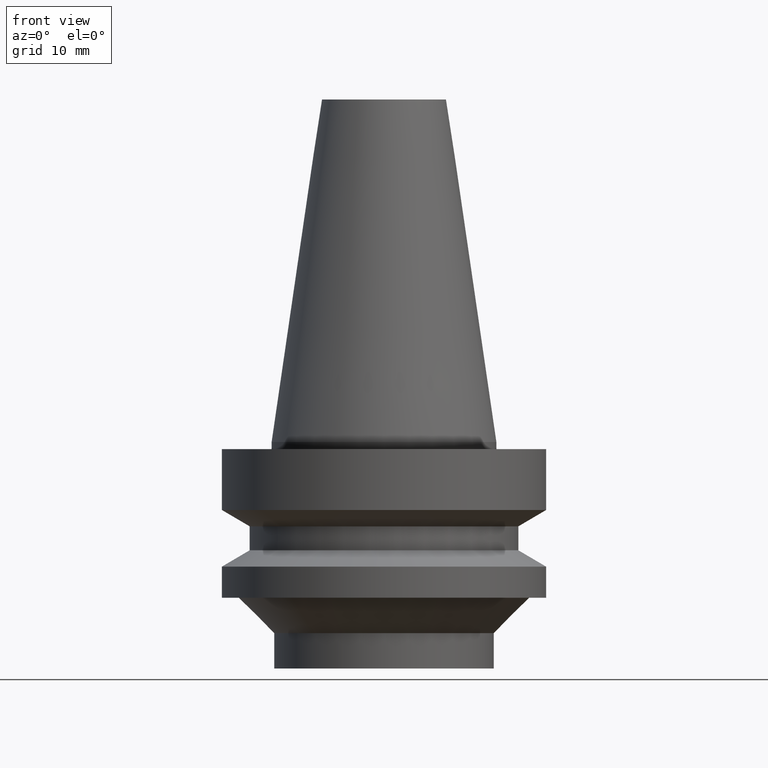
[diagram: clean part render]
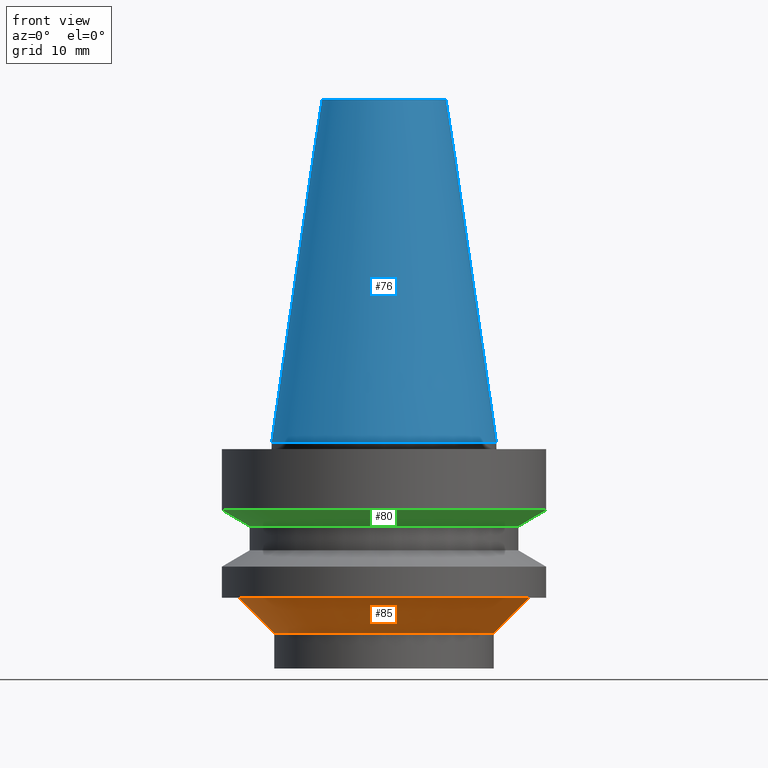
[diagram: same view with three faces highlighted in distinct colors, each labeled with its STEP entity id]
A machine part, front view with three faces highlighted in distinct colors.
Their STEP definitions:

[orange] entity #85 — the highlighted conical surface has half-angle 45 deg.
#85=ADVANCED_FACE('',(#118,#119),#120,.T.);
#118=FACE_BOUND('',#155,.T.);
#119=FACE_BOUND('',#156,.T.);
#120=CONICAL_SURFACE('',#157,18.0,0.785398163397448);
#155=EDGE_LOOP('',(#212));
#156=EDGE_LOOP('',(#213));
#157=AXIS2_PLACEMENT_3D('',#214,#215,#216);
#212=ORIENTED_EDGE('',*,*,#236,.F.);
#213=ORIENTED_EDGE('',*,*,#235,.T.);
#214=CARTESIAN_POINT('',(1.50019232895551E-015,3.00038465791101E-015,-24.5));
#215=DIRECTION('',(-6.12323399573677E-017,-1.22464679914738E-016,1.0));
#216=DIRECTION('',(-1.23259516440783E-032,1.0,1.22464679914738E-016));
#235=EDGE_CURVE('',#256,#256,#257,.T.);
#236=EDGE_CURVE('',#258,#258,#259,.T.);
#256=VERTEX_POINT('',#280);
#257=CIRCLE('',#281,20.5);
#258=VERTEX_POINT('',#282);
#259=CIRCLE('',#283,15.5);
#280=CARTESIAN_POINT('',(1.34711147906209E-015,20.5,-22.0));
#281=AXIS2_PLACEMENT_3D('',#313,#314,#315);
#282=CARTESIAN_POINT('',(1.65327317884893E-015,15.5,-27.0));
#283=AXIS2_PLACEMENT_3D('',#316,#317,#318);
#313=CARTESIAN_POINT('',(1.34711147906209E-015,2.69422295812418E-015,-22.0));
#314=DIRECTION('',(6.12323399573677E-017,1.22464679914706E-016,-1.0));
#315=DIRECTION('',(-1.23259516440783E-032,1.0,1.22464679914706E-016));
#316=CARTESIAN_POINT('',(1.65327317884893E-015,3.30654635769785E-015,-27.0));
#317=DIRECTION('',(6.12323399573677E-017,1.22464679914728E-016,-1.0));
#318=DIRECTION('',(-1.23259516440783E-032,1.0,1.22464679914728E-016));

[blue] entity #76 — the highlighted conical surface has half-angle 8.297 deg.
#76=ADVANCED_FACE('',(#91,#92),#93,.T.);
#91=FACE_BOUND('',#128,.T.);
#92=FACE_BOUND('',#129,.T.);
#93=CONICAL_SURFACE('',#130,12.3457500009933,0.14481587001362);
#128=EDGE_LOOP('',(#167));
#129=EDGE_LOOP('',(#168));
#130=AXIS2_PLACEMENT_3D('',#169,#170,#171);
#167=ORIENTED_EDGE('',*,*,#227,.F.);
#168=ORIENTED_EDGE('',*,*,#226,.T.);
#169=CARTESIAN_POINT('',(-1.4818226269683E-015,-2.96364525393659E-015,24.2));
#170=DIRECTION('',(6.12323399573677E-017,1.22464679914765E-016,-1.0));
#171=DIRECTION('',(-1.23259516440785E-032,1.0,1.22464679914765E-016));
#226=EDGE_CURVE('',#238,#238,#239,.T.);
#227=EDGE_CURVE('',#240,#240,#241,.T.);
#238=VERTEX_POINT('',#262);
#239=CIRCLE('',#263,8.81650000198667);
#240=VERTEX_POINT('',#264);
#241=CIRCLE('',#265,15.875);
#262=CARTESIAN_POINT('',(-2.96364525393659E-015,8.81650000198667,48.4));
#263=AXIS2_PLACEMENT_3D('',#286,#287,#288);
#264=CARTESIAN_POINT('',(-1.95674482349743E-031,15.875,1.94412679364642E-015));
#265=AXIS2_PLACEMENT_3D('',#289,#290,#291);
#286=CARTESIAN_POINT('',(-2.96364525393659E-015,-5.92729050787319E-015,48.4));
#287=DIRECTION('',(6.12323399573677E-017,1.22464679914719E-016,-1.0));
#288=DIRECTION('',(-1.2325951644079E-032,1.0,1.22464679914719E-016));
#289=CARTESIAN_POINT('',(0.0,0.0,0.0));
#290=DIRECTION('',(6.12323399573677E-017,1.22464679914714E-016,-1.0));
#291=DIRECTION('',(-1.23259516440783E-032,1.0,1.22464679914714E-016));

[green] entity #80 — the highlighted conical surface has half-angle 60 deg.
#80=ADVANCED_FACE('',(#103,#104),#105,.T.);
#103=FACE_BOUND('',#140,.T.);
#104=FACE_BOUND('',#141,.T.);
#105=CONICAL_SURFACE('',#142,21.0,1.04719755058882);
#140=EDGE_LOOP('',(#187));
#141=EDGE_LOOP('',(#188));
#142=AXIS2_PLACEMENT_3D('',#189,#190,#191);
#187=ORIENTED_EDGE('',*,*,#231,.F.);
#188=ORIENTED_EDGE('',*,*,#230,.T.);
#189=CARTESIAN_POINT('',(6.58535479604966E-016,1.31707095920993E-015,-10.75470054));
#190=DIRECTION('',(-6.12323399573677E-017,-1.2246467991477E-016,1.0));
#191=DIRECTION('',(-1.23259516440783E-032,1.0,1.2246467991477E-016));
#230=EDGE_CURVE('',#246,#246,#247,.T.);
#231=EDGE_CURVE('',#248,#248,#249,.T.);
#246=VERTEX_POINT('',#270);
#247=CIRCLE('',#271,23.0);
#248=VERTEX_POINT('',#272);
#249=CIRCLE('',#273,19.0);
#270=CARTESIAN_POINT('',(5.87830463590729E-016,23.0,-9.6));
#271=AXIS2_PLACEMENT_3D('',#298,#299,#300);
#272=CARTESIAN_POINT('',(7.29240495619201E-016,19.0,-11.90940108));
#273=AXIS2_PLACEMENT_3D('',#301,#302,#303);
#298=CARTESIAN_POINT('',(5.8783046359073E-016,1.17566092718146E-015,-9.6));
#299=DIRECTION('',(6.12323399573677E-017,1.22464679914716E-016,-1.0));
#300=DIRECTION('',(-1.23259516440783E-032,1.0,1.22464679914716E-016));
#301=CARTESIAN_POINT('',(7.29240495619202E-016,1.4584809912384E-015,-11.90940108));
#302=DIRECTION('',(6.12323399573677E-017,1.2246467991475E-016,-1.0));
#303=DIRECTION('',(-1.23259516440783E-032,1.0,1.2246467991475E-016));